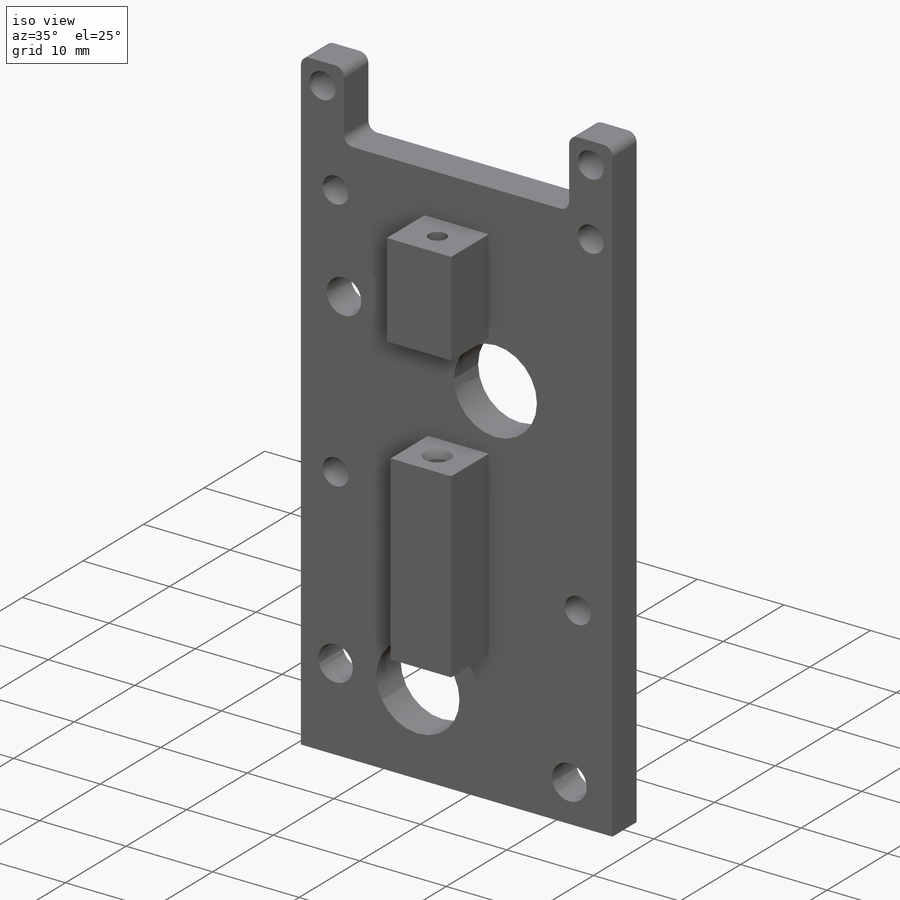
[diagram: iso view]
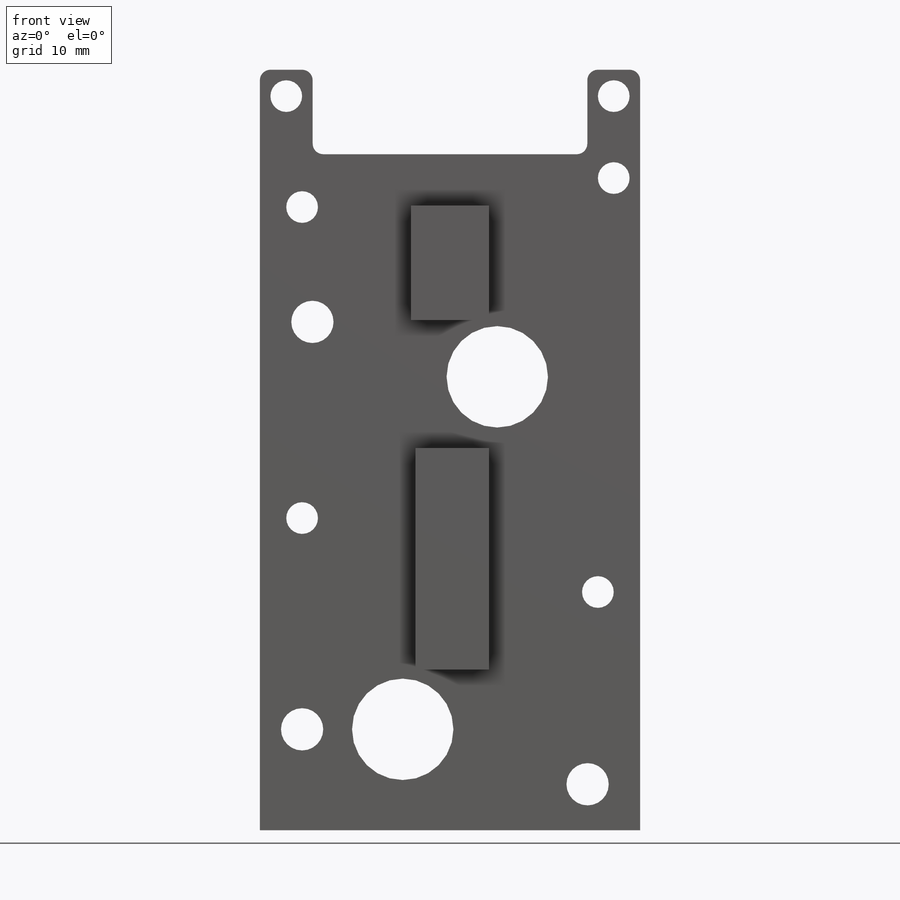
[diagram: front view]
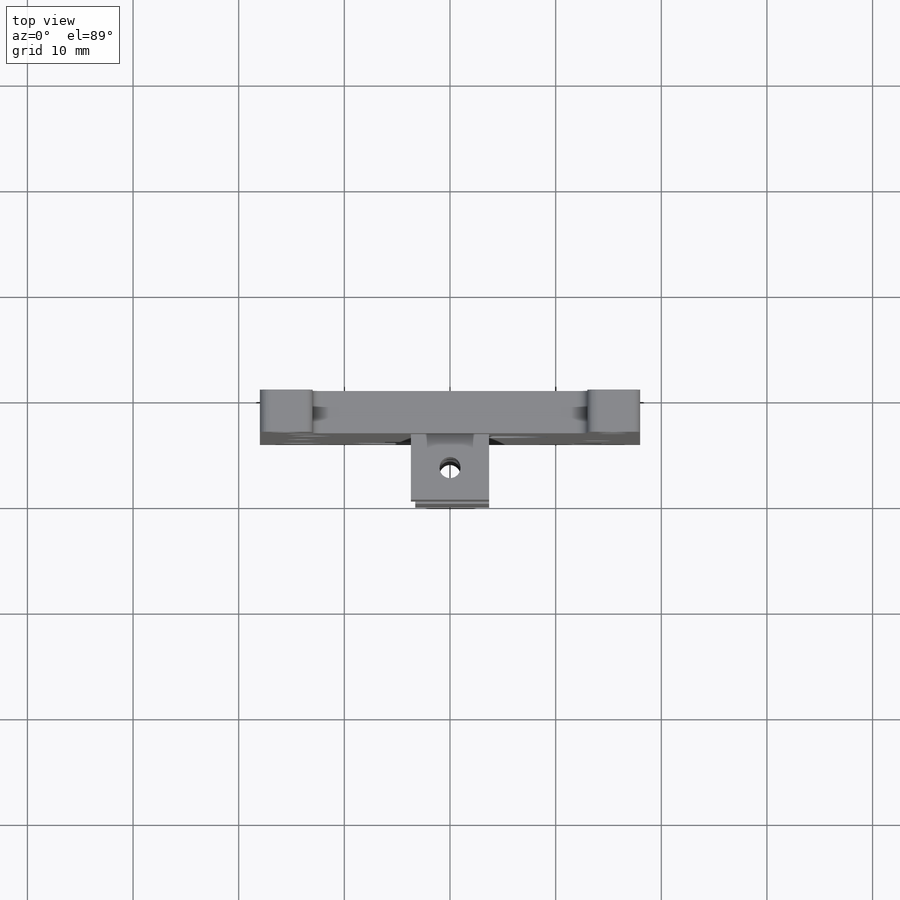
[diagram: top view]
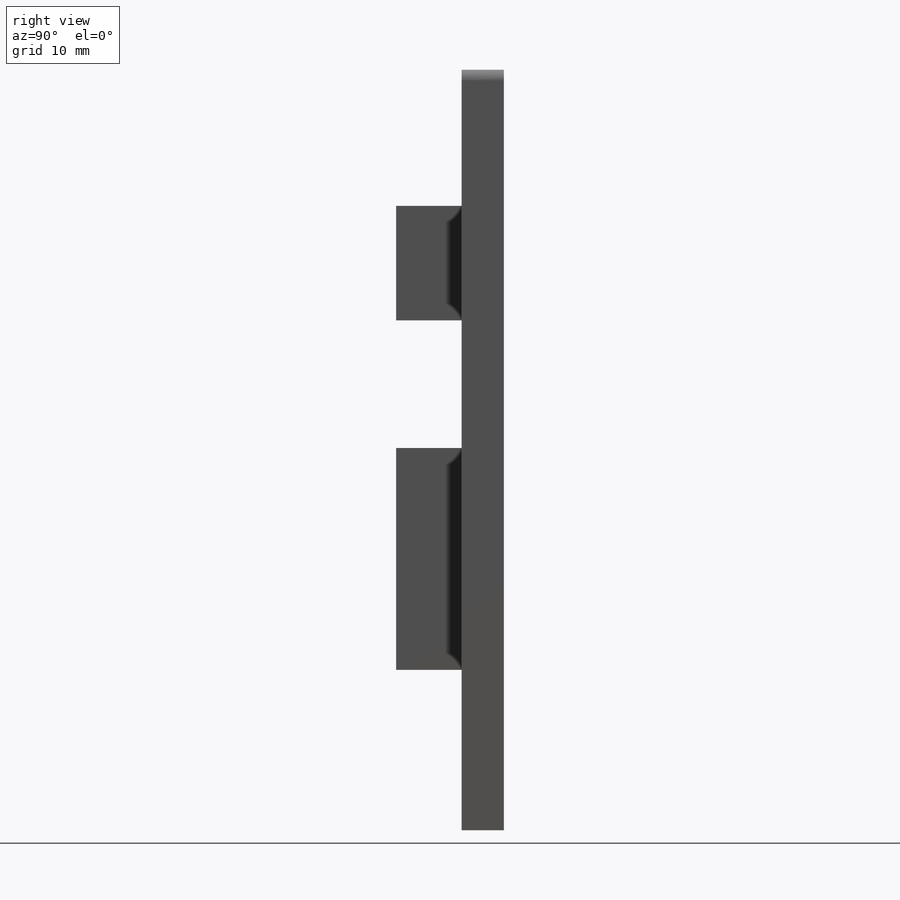
[diagram: right view]
SOLIDWORKS PART (.sldprt)
format: sldprt  version: not decoded by parser v0  size: 436,736 bytes
history: native  units: mm
features: sketch x5, cut_extrude x3, extrude x2, material x1 (+16 scaffold rows collapsed)
feature tree (27):
  scaffold x16  (default folders/planes/origin — collapsed)
  material  "Material <not specified>"
  sketch  "Sketch1"  dims[c1.D1=1.0mm c1.D2=1.0mm c2.D1=5.0mm]
  extrude  "Boss-Extrude1"  Depth=4mm
  sketch  "Sketch2"  dims[D1=5.2mm]
  cut_extrude  "Cut-Extrude1"  Depth=10mm
  sketch  "Sketch3"  dims[D1=21.0mm]
  extrude  "Boss-Extrude2"  Depth=6.2mm
  sketch  "Sketch4"  dims[D1=~1.506957mm]
  cut_extrude  "Cut-Extrude2"  Depth=70mm
  sketch  "Sketch5"  dims[D1=~1.270083mm]
  cut_extrude  "Cut-Extrude3"  Depth=3mm
decode coverage: 10 of 10 modeling features carry decoded parameters
note: ~ marks probable driven/reference dimensions
note: suppression state not decoded; provenance and decode notes live in map.json
